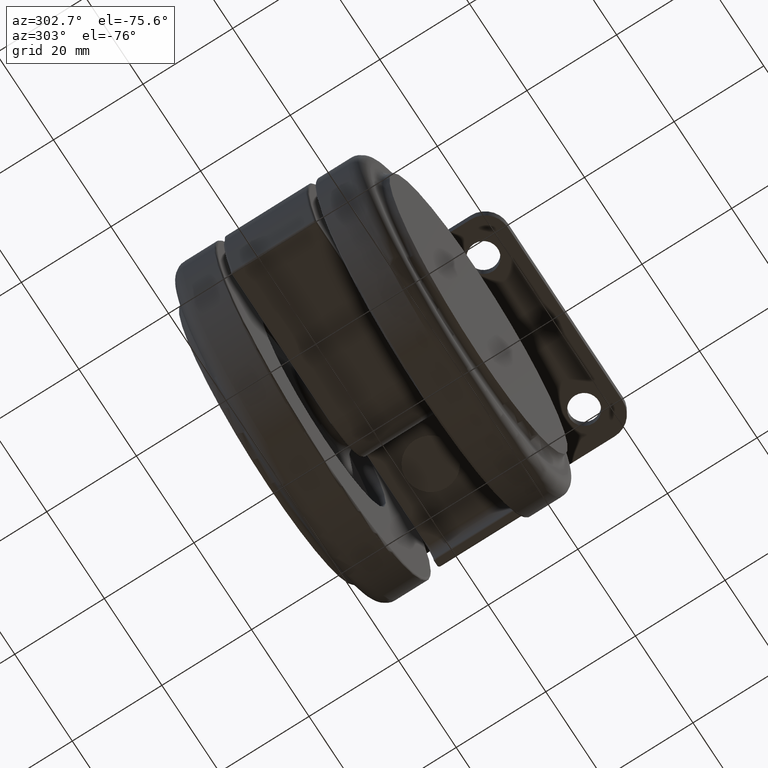
[diagram: clean part render]
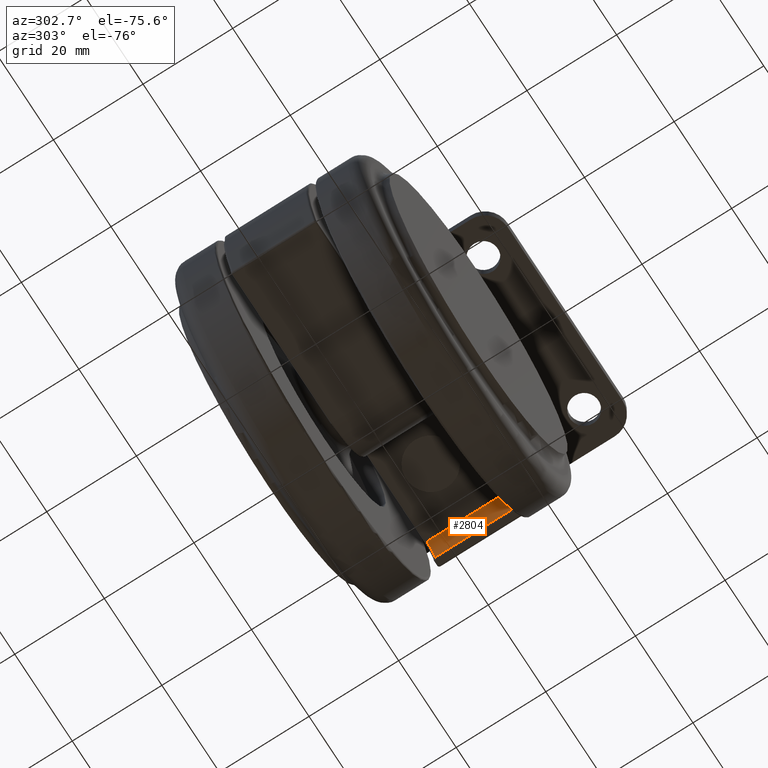
[diagram: same view with one face highlighted and labeled with its STEP entity id]
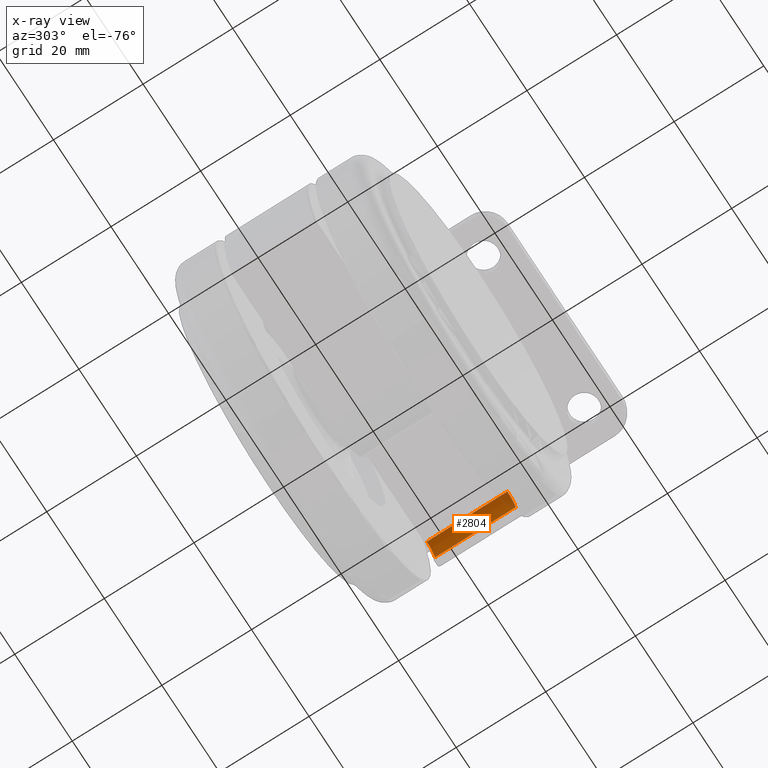
[diagram: x-ray of the same camera — body ghosted, the highlighted face saturated]
A machine part, auxiliary view. The second image highlights one B-rep face of the part: STEP entity #2804.
The next image is the same camera in x-ray: the body ghosted, the highlighted face saturated — about 8% of this face is hidden behind the body in this view.
In plain terms, the highlighted cylindrical surface (edge-blend (fillet) strip) has radius 2.8866 mm, axis along (0, -1, 0).
Its self-contained STEP definition (entity closure, byte-faithful):
#173 = AXIS2_PLACEMENT_3D ( 'NONE', #3865, #1868, #4195 ) ;
#369 = CIRCLE ( 'NONE', #173, 2.886609185796432000 ) ;
#535 = DIRECTION ( 'NONE',  ( 0.0000000000000000000, -1.000000000000000000, 0.0000000000000000000 ) ) ;
#589 = CARTESIAN_POINT ( 'NONE',  ( 12.61329079872222200, -8.999999999999788600, -37.61339081420354800 ) ) ;
#678 = VERTEX_POINT ( 'NONE', #589 ) ;
#795 = ORIENTED_EDGE ( 'NONE', *, *, #968, .T. ) ;
#803 = DIRECTION ( 'NONE',  ( -0.0000000000000000000, -1.000000000000000000, -0.0000000000000000000 ) ) ;
#968 = EDGE_CURVE ( 'NONE', #2839, #4184, #369, .T. ) ;
#971 = CARTESIAN_POINT ( 'NONE',  ( 12.61329079872222200, 990.5000000000000000, -37.61339081420354800 ) ) ;
#1078 = VECTOR ( 'NONE', #2791, 1000.000000000000000 ) ;
#1212 = CARTESIAN_POINT ( 'NONE',  ( 12.61329079872222200, 990.5000000000000000, -40.50000000000000000 ) ) ;
#1241 = ORIENTED_EDGE ( 'NONE', *, *, #2281, .T. ) ;
#1341 = LINE ( 'NONE', #971, #2926 ) ;
#1710 = EDGE_CURVE ( 'NONE', #3658, #678, #2379, .T. ) ;
#1868 = DIRECTION ( 'NONE',  ( -0.0000000000000000000, 1.000000000000000000, -0.0000000000000000000 ) ) ;
#1884 = AXIS2_PLACEMENT_3D ( 'NONE', #2817, #803, #3155 ) ;
#1970 = LINE ( 'NONE', #2436, #1078 ) ;
#2024 = ORIENTED_EDGE ( 'NONE', *, *, #4146, .F. ) ;
#2212 = CARTESIAN_POINT ( 'NONE',  ( 12.61329079872222200, 9.000000000000230900, -37.61339081420354800 ) ) ;
#2243 = CARTESIAN_POINT ( 'NONE',  ( 15.46826598731139900, -8.999999999999788600, -40.07382015056489900 ) ) ;
#2281 = EDGE_CURVE ( 'NONE', #4184, #3658, #1970, .T. ) ;
#2287 = FACE_OUTER_BOUND ( 'NONE', #4022, .T. ) ;
#2379 = CIRCLE ( 'NONE', #1884, 2.886609185796432000 ) ;
#2436 = CARTESIAN_POINT ( 'NONE',  ( 15.46826598731139900, 990.5000000000000000, -40.07382015056489900 ) ) ;
#2523 = ORIENTED_EDGE ( 'NONE', *, *, #1710, .T. ) ;
#2534 = DIRECTION ( 'NONE',  ( 0.0000000000000000000, 0.0000000000000000000, -1.000000000000000000 ) ) ;
#2785 = AXIS2_PLACEMENT_3D ( 'NONE', #1212, #535, #2534 ) ;
#2791 = DIRECTION ( 'NONE',  ( 0.0000000000000000000, -1.000000000000000000, 0.0000000000000000000 ) ) ;
#2804 = ADVANCED_FACE ( 'NONE', ( #2287 ), #3063, .F. ) ;
#2817 = CARTESIAN_POINT ( 'NONE',  ( 12.61329079872222200, -8.999999999999788600, -40.50000000000000000 ) ) ;
#2839 = VERTEX_POINT ( 'NONE', #2212 ) ;
#2926 = VECTOR ( 'NONE', #2973, 1000.000000000000000 ) ;
#2973 = DIRECTION ( 'NONE',  ( 0.0000000000000000000, -1.000000000000000000, 0.0000000000000000000 ) ) ;
#3063 = CYLINDRICAL_SURFACE ( 'NONE', #2785, 2.886609185796432000 ) ;
#3155 = DIRECTION ( 'NONE',  ( -6.009554339785650900E-016, 0.0000000000000000000, 1.000000000000000000 ) ) ;
#3658 = VERTEX_POINT ( 'NONE', #2243 ) ;
#3659 = CARTESIAN_POINT ( 'NONE',  ( 15.46826598731139900, 9.000000000000230900, -40.07382015056489900 ) ) ;
#3865 = CARTESIAN_POINT ( 'NONE',  ( 12.61329079872222200, 9.000000000000230900, -40.50000000000000000 ) ) ;
#4022 = EDGE_LOOP ( 'NONE', ( #1241, #2523, #2024, #795 ) ) ;
#4146 = EDGE_CURVE ( 'NONE', #2839, #678, #1341, .T. ) ;
#4184 = VERTEX_POINT ( 'NONE', #3659 ) ;
#4195 = DIRECTION ( 'NONE',  ( -1.802866301935695000E-015, 0.0000000000000000000, -1.000000000000000000 ) ) ;